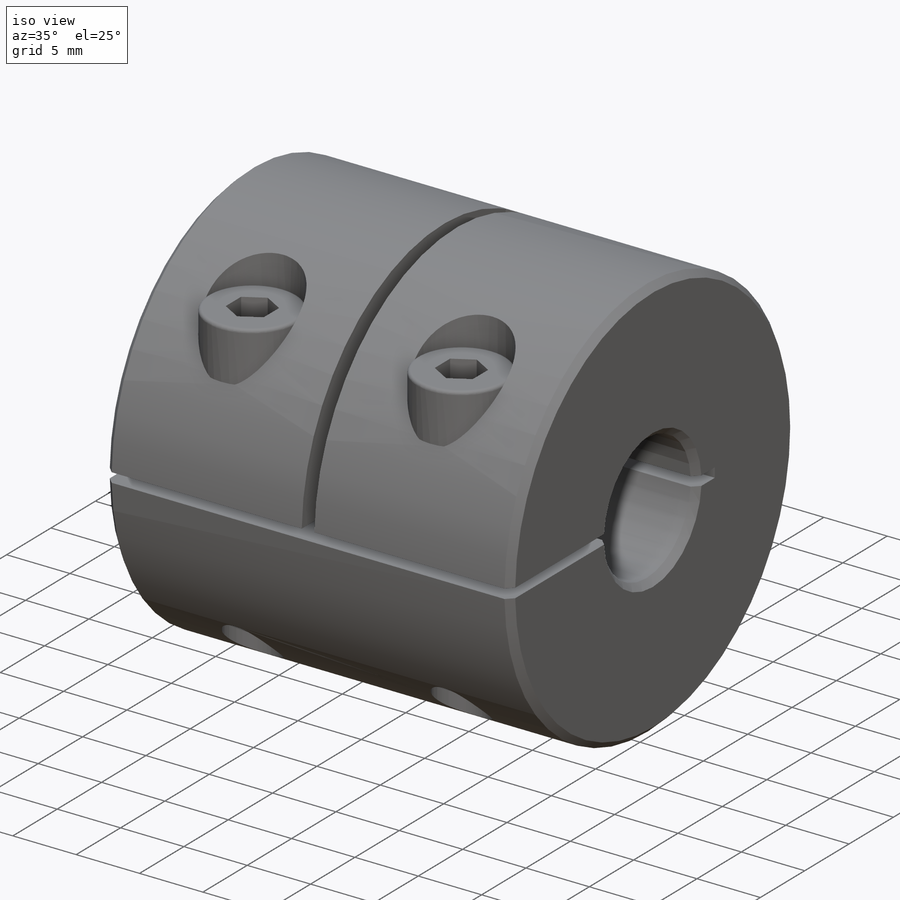
[diagram: iso view]
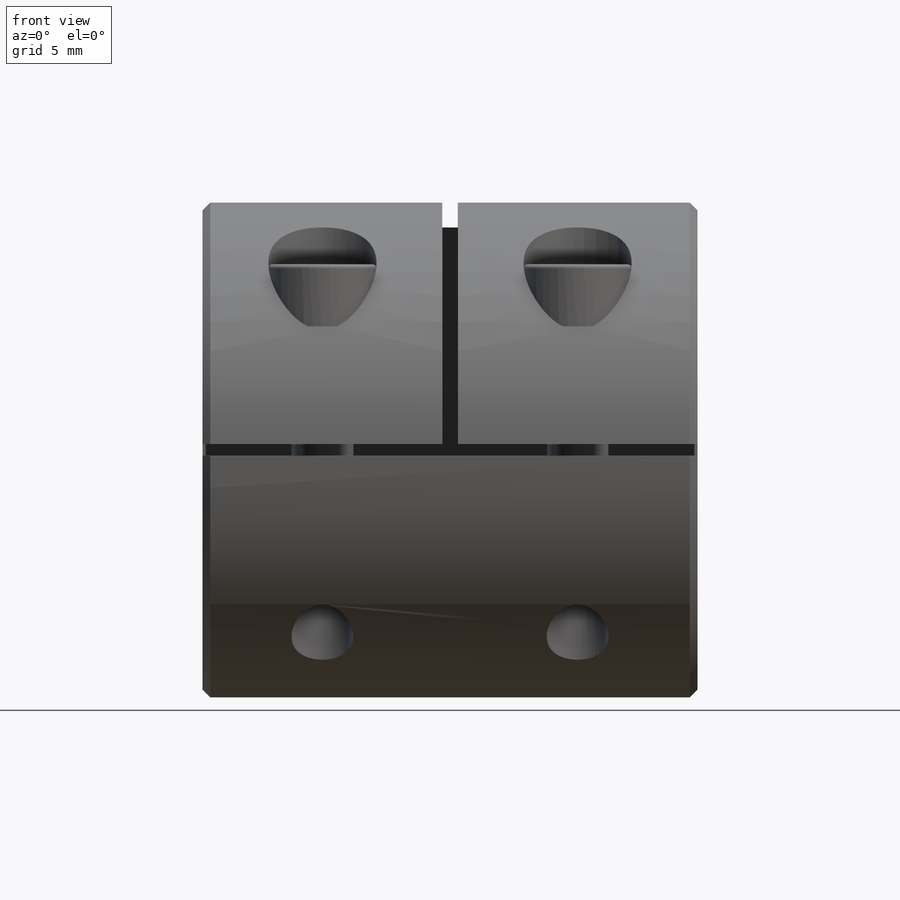
[diagram: front view]
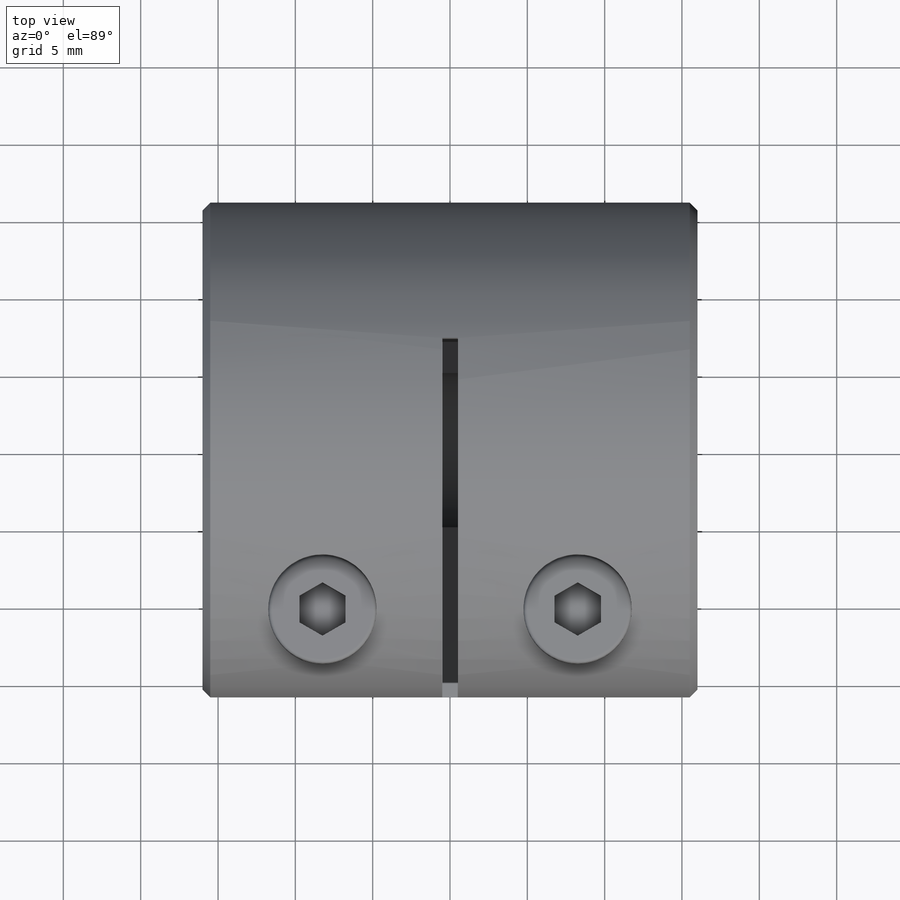
[diagram: top view]
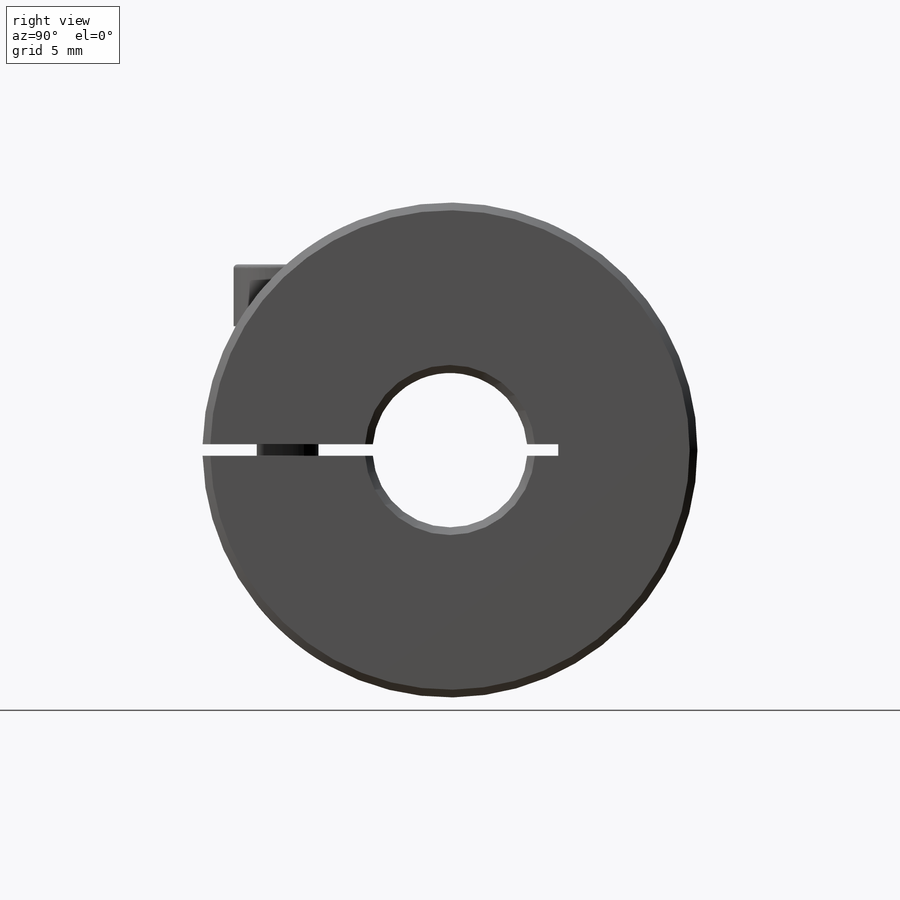
[diagram: right view]
SOLIDWORKS PART (.sldprt)
format: sldprt  version: not decoded by parser v0  size: 474,112 bytes
history: native  units: mm
features: sketch x9, cut_extrude x6, plane x4, extrude x3, mirror x2, material x1, fillet x1, chamfer x1 + 1 further entry (+17 scaffold rows collapsed)
feature tree (45):
  scaffold x17  (default folders/planes/origin — collapsed)
  material  "Material <not specified>"
  "Design Table"
  sketch  "Sketch1"  dims[Dim D=32.0mm]
  extrude  "Boss-Extrude1"  Depth=32mm Dim L=32mm
  sketch  "Sketch2"  dims[Dim d2=10.0mm]
  cut_extrude  "Cut-Extrude1"  [1 undecoded]
  sketch  "Sketch5"  dims[D1=0.75mm D2=2.0mm]
  cut_extrude  "Cut-Extrude2"  [1 undecoded]
  sketch  "Sketch6"  dims[Dim L2=15.5mm]
  cut_extrude  "Cut-Extrude3"  [1 undecoded]
  sketch  "Sketch7"  dims[Dim M=4.0mm Dim L1=7.75mm]
  cut_extrude  "Cut-Extrude4"  [1 undecoded]
  plane  "Plane1"
  plane  "Plane2"
  sketch  "Sketch8"  dims[Dim bolt diameter=7.0mm]
  cut_extrude  "Cut-Extrude5"  [1 undecoded]
  mirror  "Mirror1"
  plane  "Plane4"
  plane  "Plane5"
  sketch  "Sketch9"
  extrude  "Boss-Extrude2"  Depth=4mm Dim bolt height=4mm
  sketch  "Sketch10"
  extrude  "Boss-Extrude3"  [1 undecoded]
  fillet  "Fillet1"  Radius=0.25mm
  sketch  "Sketch11"  dims[Dim hex width=3.0mm]
  cut_extrude  "Cut-Extrude6"  Depth=3mm Dim hex depth=3mm
  mirror  "Mirror2"
  chamfer  "Chamfer1"  Distance=0.5mm Angle=45deg
decode coverage: 12 of 22 modeling features carry decoded parameters; 1 rows unclassified (native names shown)
note: 6 parameter values undecoded
summary: no parameter record found for 6 features
note: suppression state not decoded; provenance and decode notes live in map.json
